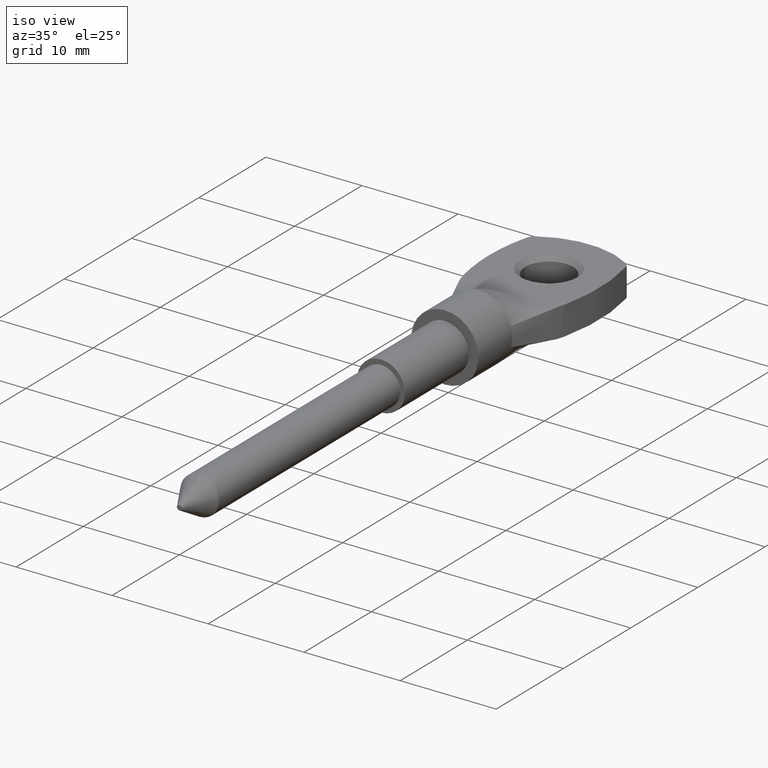
[diagram: clean part render]
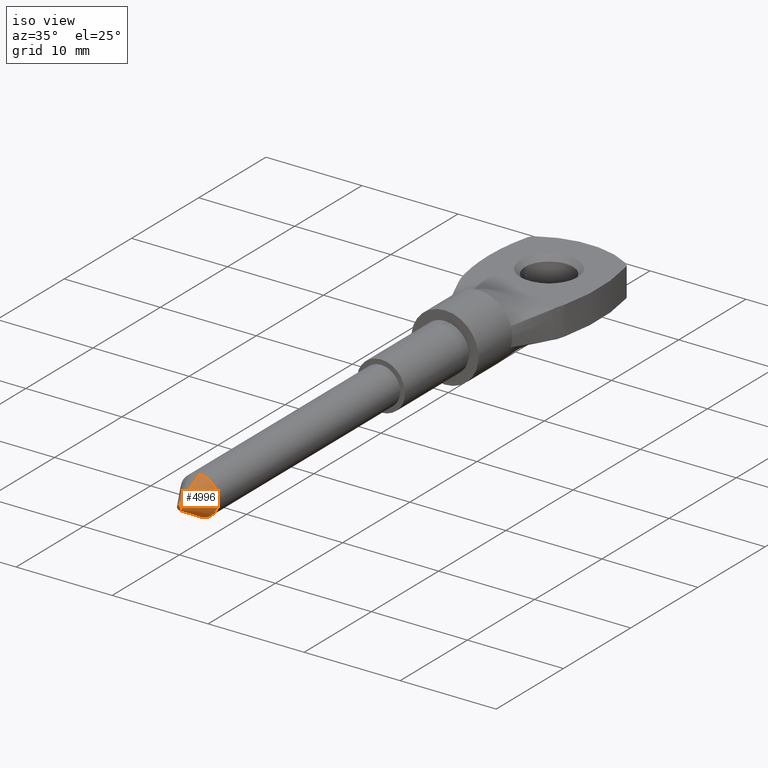
[diagram: same view with one face highlighted and labeled with its STEP entity id]
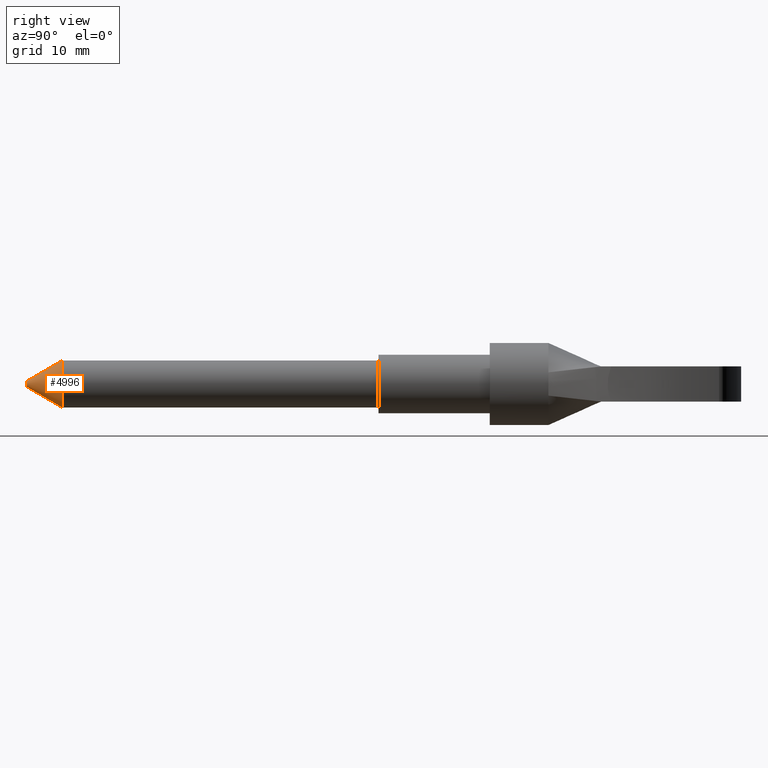
[diagram: same view with one face highlighted and labeled with its STEP entity id]
A machine part, iso view. The second image highlights one B-rep face of the part: STEP entity #4996.
A second angle (right view) of the same face is appended — the face is thin or edge-on in the first view.
In plain terms, the highlighted conical surface has half-angle 30.256 deg.
Its self-contained STEP definition (entity closure, byte-faithful):
#797 = FACE_OUTER_BOUND ( 'NONE', #11347, .T. ) ;
#1462 = AXIS2_PLACEMENT_3D ( 'NONE', #6108, #8263, #12715 ) ;
#1558 = DIRECTION ( 'NONE',  ( -0.0000000000000000000, -1.000000000000000000, -0.0000000000000000000 ) ) ;
#1860 = CARTESIAN_POINT ( 'NONE',  ( 0.0000000000000000000, 3.000000000000000900, -2.000000000000004400 ) ) ;
#2361 = DIRECTION ( 'NONE',  ( 6.170640385911674700E-017, 0.8637789008984329000, -0.5038710255240870200 ) ) ;
#3068 = EDGE_CURVE ( 'NONE', #3838, #11428, #13489, .T. ) ;
#3195 = DIRECTION ( 'NONE',  ( -0.0000000000000000000, -1.000000000000000000, -0.0000000000000000000 ) ) ;
#3196 = CARTESIAN_POINT ( 'NONE',  ( 0.0000000000000000000, -5.264398931363305000E-017, 0.2500000000000000000 ) ) ;
#3214 = ORIENTED_EDGE ( 'NONE', *, *, #11264, .T. ) ;
#3838 = VERTEX_POINT ( 'NONE', #3196 ) ;
#4045 = LINE ( 'NONE', #8872, #6096 ) ;
#4996 = ADVANCED_FACE ( 'NONE', ( #797 ), #5133, .T. ) ;
#5133 = CONICAL_SURFACE ( 'NONE', #1462, 0.2500000000000000000, 0.5280744484263606400 ) ;
#5316 = EDGE_CURVE ( 'NONE', #12563, #11428, #10677, .T. ) ;
#5460 = DIRECTION ( 'NONE',  ( 0.0000000000000000000, 0.8637789008984329000, 0.5038710255240870200 ) ) ;
#5936 = AXIS2_PLACEMENT_3D ( 'NONE', #7630, #3195, #13092 ) ;
#6096 = VECTOR ( 'NONE', #2361, 1000.000000000000100 ) ;
#6108 = CARTESIAN_POINT ( 'NONE',  ( 0.0000000000000000000, -5.264398931363305000E-017, 0.0000000000000000000 ) ) ;
#6561 = CARTESIAN_POINT ( 'NONE',  ( 0.0000000000000000000, -5.264398931363305000E-017, 0.2500000000000000000 ) ) ;
#7630 = CARTESIAN_POINT ( 'NONE',  ( 0.0000000000000000000, -5.264398931363305000E-017, 0.0000000000000000000 ) ) ;
#8263 = DIRECTION ( 'NONE',  ( 0.0000000000000000000, 1.000000000000000000, 0.0000000000000000000 ) ) ;
#8872 = CARTESIAN_POINT ( 'NONE',  ( 3.061616997868383000E-017, -5.264398931363305000E-017, -0.2500000000000000000 ) ) ;
#9121 = EDGE_CURVE ( 'NONE', #11945, #3838, #12781, .T. ) ;
#9172 = CARTESIAN_POINT ( 'NONE',  ( 1.377727649040774900E-016, -5.264398931363305000E-017, -0.2500000000000000000 ) ) ;
#10420 = CARTESIAN_POINT ( 'NONE',  ( 2.449293598294711800E-016, 3.000000000000000900, 2.000000000000004400 ) ) ;
#10677 = CIRCLE ( 'NONE', #14176, 2.000000000000004400 ) ;
#11264 = EDGE_CURVE ( 'NONE', #11945, #12563, #4045, .T. ) ;
#11318 = ORIENTED_EDGE ( 'NONE', *, *, #5316, .T. ) ;
#11347 = EDGE_LOOP ( 'NONE', ( #12204, #3214, #11318, #13234 ) ) ;
#11395 = VECTOR ( 'NONE', #5460, 1000.000000000000100 ) ;
#11428 = VERTEX_POINT ( 'NONE', #10420 ) ;
#11945 = VERTEX_POINT ( 'NONE', #9172 ) ;
#12204 = ORIENTED_EDGE ( 'NONE', *, *, #9121, .F. ) ;
#12563 = VERTEX_POINT ( 'NONE', #1860 ) ;
#12643 = CARTESIAN_POINT ( 'NONE',  ( 0.0000000000000000000, 3.000000000000000900, 0.0000000000000000000 ) ) ;
#12715 = DIRECTION ( 'NONE',  ( 0.0000000000000000000, 0.0000000000000000000, 1.000000000000000000 ) ) ;
#12781 = CIRCLE ( 'NONE', #5936, 0.2500000000000000000 ) ;
#12782 = DIRECTION ( 'NONE',  ( 0.0000000000000000000, 0.0000000000000000000, -1.000000000000000000 ) ) ;
#13092 = DIRECTION ( 'NONE',  ( 0.0000000000000000000, 0.0000000000000000000, -1.000000000000000000 ) ) ;
#13234 = ORIENTED_EDGE ( 'NONE', *, *, #3068, .F. ) ;
#13489 = LINE ( 'NONE', #6561, #11395 ) ;
#14176 = AXIS2_PLACEMENT_3D ( 'NONE', #12643, #1558, #12782 ) ;